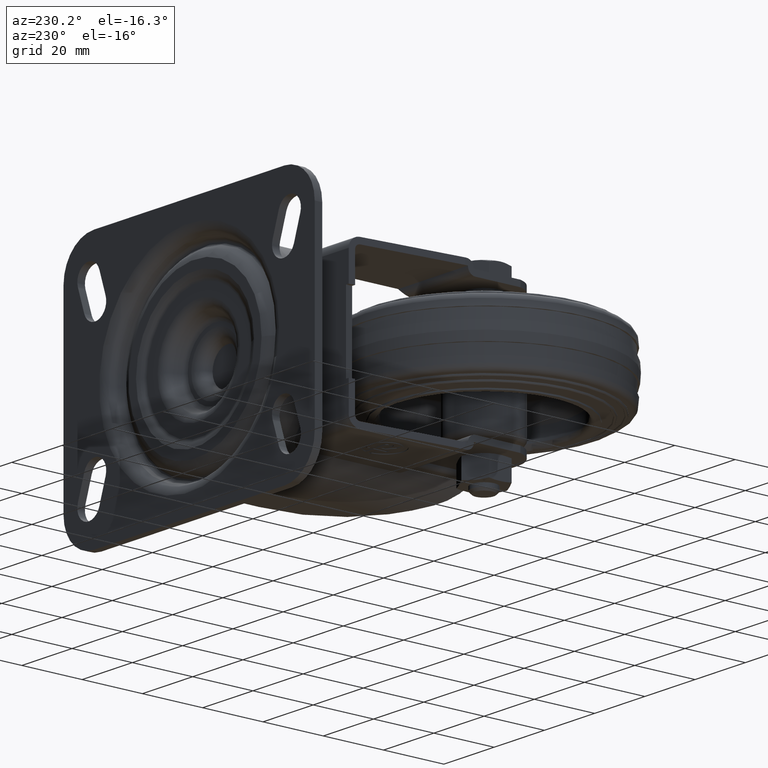
[diagram: clean part render]
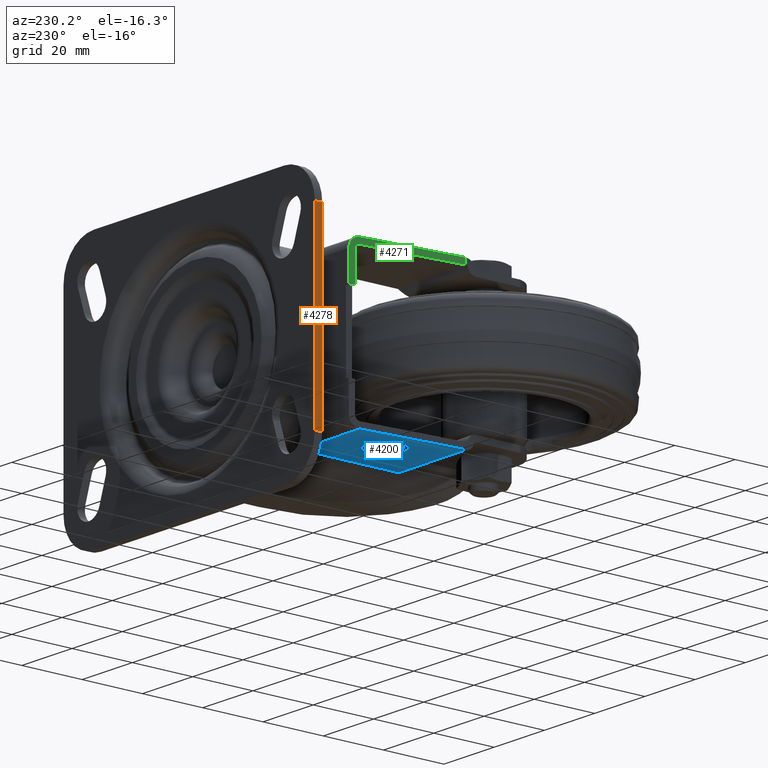
[diagram: same view with three faces highlighted in distinct colors, each labeled with its STEP entity id]
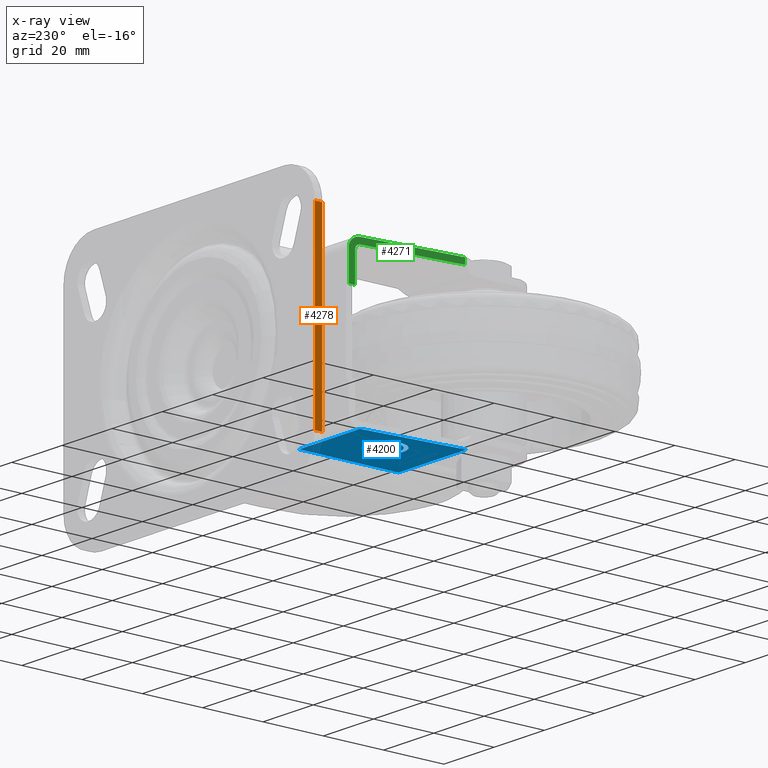
[diagram: x-ray of the same camera — body ghosted, the three highlighted faces saturated]
A machine part, auxiliary view with three faces highlighted in distinct colors.
The next image is the same camera in x-ray (body ghosted, the three faces saturated) — at least one of them is partly hidden behind the body in this view.
Their STEP definitions:

[orange] entity #4278 — the highlighted planar face has unit normal (-1, 0, 0).
#688=FACE_OUTER_BOUND('',#1034,.T.);
#1034=EDGE_LOOP('',(#3535,#3536,#3537,#3538));
#1426=LINE('',#7164,#1756);
#1427=LINE('',#7167,#1757);
#1428=LINE('',#7169,#1758);
#1429=LINE('',#7170,#1759);
#1756=VECTOR('',#5695,2.5);
#1757=VECTOR('',#5698,61.);
#1758=VECTOR('',#5699,61.);
#1759=VECTOR('',#5700,2.5);
#2121=VERTEX_POINT('',#7158);
#2123=VERTEX_POINT('',#7162);
#2124=VERTEX_POINT('',#7166);
#2125=VERTEX_POINT('',#7168);
#2635=EDGE_CURVE('',#2123,#2121,#1426,.T.);
#2636=EDGE_CURVE('',#2121,#2124,#1427,.T.);
#2637=EDGE_CURVE('',#2123,#2125,#1428,.T.);
#2638=EDGE_CURVE('',#2125,#2124,#1429,.T.);
#3535=ORIENTED_EDGE('',*,*,#2636,.F.);
#3536=ORIENTED_EDGE('',*,*,#2635,.F.);
#3537=ORIENTED_EDGE('',*,*,#2637,.T.);
#3538=ORIENTED_EDGE('',*,*,#2638,.T.);
#4058=PLANE('',#4677);
#4278=ADVANCED_FACE('',(#688),#4058,.T.);
#4677=AXIS2_PLACEMENT_3D('',#7165,#5696,#5697);
#5695=DIRECTION('',(0.,1.,0.));
#5696=DIRECTION('center_axis',(-1.,0.,0.));
#5697=DIRECTION('ref_axis',(0.,0.,1.));
#5698=DIRECTION('',(0.,0.,1.));
#5699=DIRECTION('',(0.,0.,1.));
#5700=DIRECTION('',(0.,1.,0.));
#7158=CARTESIAN_POINT('',(-13.,67.,-30.5));
#7162=CARTESIAN_POINT('',(-13.,64.5,-30.5));
#7164=CARTESIAN_POINT('',(-13.,64.5,-30.5));
#7165=CARTESIAN_POINT('Origin',(-13.,64.5,-30.5));
#7166=CARTESIAN_POINT('',(-13.,67.,30.5));
#7167=CARTESIAN_POINT('',(-13.,67.,-30.5));
#7168=CARTESIAN_POINT('',(-13.,64.5,30.5));
#7169=CARTESIAN_POINT('',(-13.,64.5,-30.5));
#7170=CARTESIAN_POINT('',(-13.,64.5,30.5));

[blue] entity #4200 — the highlighted planar face has unit normal (0, 0, -1).
#283=FACE_BOUND('',#950,.T.);
#409=CIRCLE('',#4561,5.99999999999326);
#410=CIRCLE('',#4562,4.79999999999727);
#411=CIRCLE('',#4563,1.79999999999933);
#412=CIRCLE('',#4564,0.599999999999786);
#610=FACE_OUTER_BOUND('',#949,.T.);
#949=EDGE_LOOP('',(#3131,#3132,#3133,#3134,#3135));
#950=EDGE_LOOP('',(#3136,#3137,#3138,#3139,#3140,#3141,#3142,#3143,#3144,
#3145,#3146,#3147,#3148,#3149,#3150,#3151,#3152,#3153,#3154,#3155,#3156,
#3157,#3158,#3159));
#1247=LINE('',#6592,#1577);
#1250=LINE('',#6643,#1580);
#1251=LINE('',#6645,#1581);
#1252=LINE('',#6646,#1582);
#1253=LINE('',#6647,#1583);
#1254=LINE('',#6650,#1584);
#1255=LINE('',#6652,#1585);
#1256=LINE('',#6656,#1586);
#1257=LINE('',#6658,#1587);
#1258=LINE('',#6660,#1588);
#1259=LINE('',#6662,#1589);
#1260=LINE('',#6666,#1590);
#1261=LINE('',#6668,#1591);
#1262=LINE('',#6670,#1592);
#1263=LINE('',#6672,#1593);
#1264=LINE('',#6674,#1594);
#1265=LINE('',#6678,#1595);
#1266=LINE('',#6680,#1596);
#1267=LINE('',#6682,#1597);
#1268=LINE('',#6684,#1598);
#1269=LINE('',#6686,#1599);
#1270=LINE('',#6688,#1600);
#1271=LINE('',#6692,#1601);
#1272=LINE('',#6694,#1602);
#1273=LINE('',#6695,#1603);
#1577=VECTOR('',#5256,27.0536399343466);
#1580=VECTOR('',#5287,32.6392798236095);
#1581=VECTOR('',#5288,24.2089392585713);
#1582=VECTOR('',#5289,32.93);
#1583=VECTOR('',#5290,0.414922490187299);
#1584=VECTOR('',#5291,4.3199999999984);
#1585=VECTOR('',#5292,3.11999999999401);
#1586=VECTOR('',#5295,0.834846212333381);
#1587=VECTOR('',#5296,2.03646752983728);
#1588=VECTOR('',#5297,2.03646752983734);
#1589=VECTOR('',#5298,0.842038973398188);
#1590=VECTOR('',#5301,1.19999999999844);
#1591=VECTOR('',#5302,0.719999999999699);
#1592=VECTOR('',#5303,1.19999999999947);
#1593=VECTOR('',#5304,0.719999999999699);
#1594=VECTOR('',#5305,3.35999999999893);
#1595=VECTOR('',#5308,1.13030475158405);
#1596=VECTOR('',#5309,3.34808382603414);
#1597=VECTOR('',#5310,2.09255239127923);
#1598=VECTOR('',#5311,2.92957334777494);
#1599=VECTOR('',#5312,1.4399999999995);
#1600=VECTOR('',#5313,2.87999999999907);
#1601=VECTOR('',#5316,3.35999999999868);
#1602=VECTOR('',#5317,4.3199999999983);
#1603=VECTOR('',#5318,1.19999999999954);
#1964=VERTEX_POINT('',#6589);
#1965=VERTEX_POINT('',#6591);
#1976=VERTEX_POINT('',#6641);
#1977=VERTEX_POINT('',#6642);
#1978=VERTEX_POINT('',#6644);
#1979=VERTEX_POINT('',#6648);
#1980=VERTEX_POINT('',#6649);
#1981=VERTEX_POINT('',#6651);
#1982=VERTEX_POINT('',#6653);
#1983=VERTEX_POINT('',#6655);
#1984=VERTEX_POINT('',#6657);
#1985=VERTEX_POINT('',#6659);
#1986=VERTEX_POINT('',#6661);
#1987=VERTEX_POINT('',#6663);
#1988=VERTEX_POINT('',#6665);
#1989=VERTEX_POINT('',#6667);
#1990=VERTEX_POINT('',#6669);
#1991=VERTEX_POINT('',#6671);
#1992=VERTEX_POINT('',#6673);
#1993=VERTEX_POINT('',#6675);
#1994=VERTEX_POINT('',#6677);
#1995=VERTEX_POINT('',#6679);
#1996=VERTEX_POINT('',#6681);
#1997=VERTEX_POINT('',#6683);
#1998=VERTEX_POINT('',#6685);
#1999=VERTEX_POINT('',#6687);
#2000=VERTEX_POINT('',#6689);
#2001=VERTEX_POINT('',#6691);
#2002=VERTEX_POINT('',#6693);
#2402=EDGE_CURVE('',#1964,#1965,#1247,.T.);
#2414=EDGE_CURVE('',#1976,#1977,#1250,.T.);
#2415=EDGE_CURVE('',#1976,#1978,#1251,.T.);
#2416=EDGE_CURVE('',#1965,#1978,#1252,.T.);
#2417=EDGE_CURVE('',#1964,#1977,#1253,.T.);
#2418=EDGE_CURVE('',#1979,#1980,#1254,.T.);
#2419=EDGE_CURVE('',#1980,#1981,#1255,.T.);
#2420=EDGE_CURVE('',#1981,#1982,#409,.T.);
#2421=EDGE_CURVE('',#1982,#1983,#1256,.T.);
#2422=EDGE_CURVE('',#1983,#1984,#1257,.T.);
#2423=EDGE_CURVE('',#1984,#1985,#1258,.T.);
#2424=EDGE_CURVE('',#1985,#1986,#1259,.T.);
#2425=EDGE_CURVE('',#1987,#1986,#410,.T.);
#2426=EDGE_CURVE('',#1987,#1988,#1260,.T.);
#2427=EDGE_CURVE('',#1988,#1989,#1261,.T.);
#2428=EDGE_CURVE('',#1989,#1990,#1262,.T.);
#2429=EDGE_CURVE('',#1990,#1991,#1263,.T.);
#2430=EDGE_CURVE('',#1991,#1992,#1264,.T.);
#2431=EDGE_CURVE('',#1992,#1993,#411,.T.);
#2432=EDGE_CURVE('',#1993,#1994,#1265,.T.);
#2433=EDGE_CURVE('',#1994,#1995,#1266,.T.);
#2434=EDGE_CURVE('',#1995,#1996,#1267,.T.);
#2435=EDGE_CURVE('',#1996,#1997,#1268,.T.);
#2436=EDGE_CURVE('',#1997,#1998,#1269,.T.);
#2437=EDGE_CURVE('',#1998,#1999,#1270,.T.);
#2438=EDGE_CURVE('',#2000,#1999,#412,.T.);
#2439=EDGE_CURVE('',#2000,#2001,#1271,.T.);
#2440=EDGE_CURVE('',#2001,#2002,#1272,.T.);
#2441=EDGE_CURVE('',#2002,#1979,#1273,.T.);
#3131=ORIENTED_EDGE('',*,*,#2414,.F.);
#3132=ORIENTED_EDGE('',*,*,#2415,.T.);
#3133=ORIENTED_EDGE('',*,*,#2416,.F.);
#3134=ORIENTED_EDGE('',*,*,#2402,.F.);
#3135=ORIENTED_EDGE('',*,*,#2417,.T.);
#3136=ORIENTED_EDGE('',*,*,#2418,.T.);
#3137=ORIENTED_EDGE('',*,*,#2419,.T.);
#3138=ORIENTED_EDGE('',*,*,#2420,.T.);
#3139=ORIENTED_EDGE('',*,*,#2421,.T.);
#3140=ORIENTED_EDGE('',*,*,#2422,.T.);
#3141=ORIENTED_EDGE('',*,*,#2423,.T.);
#3142=ORIENTED_EDGE('',*,*,#2424,.T.);
#3143=ORIENTED_EDGE('',*,*,#2425,.F.);
#3144=ORIENTED_EDGE('',*,*,#2426,.T.);
#3145=ORIENTED_EDGE('',*,*,#2427,.T.);
#3146=ORIENTED_EDGE('',*,*,#2428,.T.);
#3147=ORIENTED_EDGE('',*,*,#2429,.T.);
#3148=ORIENTED_EDGE('',*,*,#2430,.T.);
#3149=ORIENTED_EDGE('',*,*,#2431,.T.);
#3150=ORIENTED_EDGE('',*,*,#2432,.T.);
#3151=ORIENTED_EDGE('',*,*,#2433,.T.);
#3152=ORIENTED_EDGE('',*,*,#2434,.T.);
#3153=ORIENTED_EDGE('',*,*,#2435,.T.);
#3154=ORIENTED_EDGE('',*,*,#2436,.T.);
#3155=ORIENTED_EDGE('',*,*,#2437,.T.);
#3156=ORIENTED_EDGE('',*,*,#2438,.F.);
#3157=ORIENTED_EDGE('',*,*,#2439,.T.);
#3158=ORIENTED_EDGE('',*,*,#2440,.T.);
#3159=ORIENTED_EDGE('',*,*,#2441,.T.);
#3999=PLANE('',#4560);
#4200=ADVANCED_FACE('',(#610,#283),#3999,.T.);
#4560=AXIS2_PLACEMENT_3D('',#6640,#5285,#5286);
#4561=AXIS2_PLACEMENT_3D('',#6654,#5293,#5294);
#4562=AXIS2_PLACEMENT_3D('',#6664,#5299,#5300);
#4563=AXIS2_PLACEMENT_3D('',#6676,#5306,#5307);
#4564=AXIS2_PLACEMENT_3D('',#6690,#5314,#5315);
#5256=DIRECTION('',(1.,0.,0.));
#5285=DIRECTION('center_axis',(0.,0.,-1.));
#5286=DIRECTION('ref_axis',(-1.,0.,0.));
#5287=DIRECTION('',(-0.0871557427476581,-0.996194698091746,0.));
#5288=DIRECTION('',(1.,0.,0.));
#5289=DIRECTION('',(0.,1.,0.));
#5290=DIRECTION('',(0.,1.,0.));
#5291=DIRECTION('',(-2.22261445359609E-13,1.,0.));
#5292=DIRECTION('',(1.,2.46864494658712E-13,0.));
#5293=DIRECTION('center_axis',(0.,0.,1.));
#5294=DIRECTION('ref_axis',(1.,0.,0.));
#5295=DIRECTION('',(0.99984769515611,-0.0174524064534138,0.));
#5296=DIRECTION('',(-0.694658370462154,0.719339800335603,0.));
#5297=DIRECTION('',(-0.71933980033565,-0.694658370462105,0.));
#5298=DIRECTION('',(0.999847695157054,-0.0174524063993045,0.));
#5299=DIRECTION('center_axis',(0.,0.,1.));
#5300=DIRECTION('ref_axis',(1.,0.,0.));
#5301=DIRECTION('',(-1.,-1.67689936011309E-13,0.));
#5302=DIRECTION('',(-1.94554056507195E-13,1.,0.));
#5303=DIRECTION('',(-1.,-2.94902990916188E-13,0.));
#5304=DIRECTION('',(1.8853071110451E-13,-1.,0.));
#5305=DIRECTION('',(-1.,-2.43687345434915E-13,0.));
#5306=DIRECTION('center_axis',(0.,0.,1.));
#5307=DIRECTION('ref_axis',(1.,0.,0.));
#5308=DIRECTION('',(1.,1.78029795001176E-13,0.));
#5309=DIRECTION('',(-0.8192319205196,-0.573462344362529,0.));
#5310=DIRECTION('',(1.,2.37093664271923E-13,0.));
#5311=DIRECTION('',(0.819231920518928,0.573462344363489,0.));
#5312=DIRECTION('',(-1.89434212914894E-13,1.,0.));
#5313=DIRECTION('',(-1.,-2.07203081852852E-13,0.));
#5314=DIRECTION('center_axis',(0.,0.,1.));
#5315=DIRECTION('ref_axis',(1.,0.,0.));
#5316=DIRECTION('',(1.,2.0444955252591E-13,0.));
#5317=DIRECTION('',(2.36817863416141E-13,-1.,0.));
#5318=DIRECTION('',(1.,1.6479873021786E-13,0.));
#6589=CARTESIAN_POINT('',(-11.,15.,-25.5));
#6591=CARTESIAN_POINT('',(16.0536399343466,15.,-25.5));
#6592=CARTESIAN_POINT('',(-11.,15.,-25.5));
#6640=CARTESIAN_POINT('Origin',(-11.,15.,-25.5));
#6641=CARTESIAN_POINT('',(-8.15529932422467,47.93,-25.5));
#6642=CARTESIAN_POINT('',(-11.,15.4149224901873,-25.5));
#6643=CARTESIAN_POINT('',(-11.036025267147,15.0031518024759,-25.5));
#6644=CARTESIAN_POINT('',(16.0536399343466,47.93,-25.5));
#6645=CARTESIAN_POINT('',(-11.,47.93,-25.5));
#6646=CARTESIAN_POINT('',(16.0536399343466,69.,-25.5));
#6647=CARTESIAN_POINT('',(-11.,15.,-25.5));
#6648=CARTESIAN_POINT('',(3.64000000228326,29.3518077191249,-25.5));
#6649=CARTESIAN_POINT('',(3.6400000022823,33.6718077191233,-25.5));
#6650=CARTESIAN_POINT('',(3.64000000228326,29.3518077191249,-25.5));
#6651=CARTESIAN_POINT('',(6.76000000227631,33.6718077191241,-25.5));
#6652=CARTESIAN_POINT('',(3.6400000022823,33.6718077191233,-25.5));
#6653=CARTESIAN_POINT('',(6.97993015684598,31.5014656482448,-25.5));
#6654=CARTESIAN_POINT('Origin',(1.00000000228351,31.9918077191235,-25.5));
#6655=CARTESIAN_POINT('',(7.81464921805732,31.4868955728211,-25.5));
#6656=CARTESIAN_POINT('',(6.97993015684598,31.5014656482448,-25.5));
#6657=CARTESIAN_POINT('',(6.40000000228147,32.9518077191242,-25.5));
#6658=CARTESIAN_POINT('',(7.81464921805732,31.4868955728211,-25.5));
#6659=CARTESIAN_POINT('',(4.93508785597824,31.5371585033484,-25.5));
#6660=CARTESIAN_POINT('',(6.40000000228147,32.9518077191242,-25.5));
#6661=CARTESIAN_POINT('',(5.77699858276283,31.5224628969806,-25.5));
#6662=CARTESIAN_POINT('',(4.93508785597824,31.5371585033484,-25.5));
#6663=CARTESIAN_POINT('',(4.8400000022804,34.8718077191231,-25.5));
#6664=CARTESIAN_POINT('Origin',(1.00000000228351,31.9918077191235,-25.5));
#6665=CARTESIAN_POINT('',(3.64000000228196,34.8718077191229,-25.5));
#6666=CARTESIAN_POINT('',(4.8400000022804,34.8718077191231,-25.5));
#6667=CARTESIAN_POINT('',(3.64000000228182,35.5918077191226,-25.5));
#6668=CARTESIAN_POINT('',(3.64000000228196,34.8718077191229,-25.5));
#6669=CARTESIAN_POINT('',(2.44000000228235,35.5918077191223,-25.5));
#6670=CARTESIAN_POINT('',(3.64000000228182,35.5918077191226,-25.5));
#6671=CARTESIAN_POINT('',(2.44000000228249,34.8718077191226,-25.5));
#6672=CARTESIAN_POINT('',(2.44000000228235,35.5918077191223,-25.5));
#6673=CARTESIAN_POINT('',(-0.919999997716437,34.8718077191218,-25.5));
#6674=CARTESIAN_POINT('',(2.44000000228249,34.8718077191226,-25.5));
#6675=CARTESIAN_POINT('',(-0.919999997715993,31.2718077191232,-25.5));
#6676=CARTESIAN_POINT('Origin',(-0.919999997716009,33.0718077191225,-25.5));
#6677=CARTESIAN_POINT('',(0.21030475386806,31.2718077191234,-25.5));
#6678=CARTESIAN_POINT('',(-0.919999997715689,31.2718077191232,-25.5));
#6679=CARTESIAN_POINT('',(-2.5325523889945,29.3518077191236,-25.5));
#6680=CARTESIAN_POINT('',(0.21030475386806,31.2718077191234,-25.5));
#6681=CARTESIAN_POINT('',(-0.43999999771527,29.3518077191241,-25.5));
#6682=CARTESIAN_POINT('',(-2.5325523889945,29.3518077191236,-25.5));
#6683=CARTESIAN_POINT('',(1.96000000228347,31.0318077191239,-25.5));
#6684=CARTESIAN_POINT('',(-0.43999999771527,29.3518077191241,-25.5));
#6685=CARTESIAN_POINT('',(1.96000000228319,32.4718077191234,-25.5));
#6686=CARTESIAN_POINT('',(1.96000000228347,31.0318077191239,-25.5));
#6687=CARTESIAN_POINT('',(-0.919999997715875,32.4718077191228,-25.5));
#6688=CARTESIAN_POINT('',(1.96000000228319,32.4718077191234,-25.5));
#6689=CARTESIAN_POINT('',(-0.919999997715995,33.6718077191223,-25.5));
#6690=CARTESIAN_POINT('Origin',(-0.919999997715995,33.0718077191225,-25.5));
#6691=CARTESIAN_POINT('',(2.44000000228269,33.671807719123,-25.5));
#6692=CARTESIAN_POINT('',(-0.919999997716123,33.6718077191223,-25.5));
#6693=CARTESIAN_POINT('',(2.44000000228372,29.3518077191247,-25.5));
#6694=CARTESIAN_POINT('',(2.4400000022827,33.671807719123,-25.5));
#6695=CARTESIAN_POINT('',(2.44000000228372,29.3518077191247,-25.5));

[green] entity #4271 — the highlighted planar face has unit normal (0.9962, -0.0872, 0).
#49=ELLIPSE('',#4540,1.50572975631501,1.49999999999999);
#50=ELLIPSE('',#4548,3.51336943140172,3.5);
#681=FACE_OUTER_BOUND('',#1027,.T.);
#1027=EDGE_LOOP('',(#3499,#3500,#3501,#3502,#3503,#3504,#3505,#3506));
#1239=LINE('',#6549,#1569);
#1363=LINE('',#6901,#1693);
#1369=LINE('',#6918,#1699);
#1412=LINE('',#7070,#1742);
#1416=LINE('',#7082,#1746);
#1417=LINE('',#7083,#1747);
#1569=VECTOR('',#5238,32.6392798236095);
#1693=VECTOR('',#5504,2.0076396750867);
#1699=VECTOR('',#5524,9.5);
#1742=VECTOR('',#5649,9.5);
#1746=VECTOR('',#5663,2.);
#1747=VECTOR('',#5664,32.6392798236095);
#1953=VERTEX_POINT('',#6542);
#1954=VERTEX_POINT('',#6544);
#1955=VERTEX_POINT('',#6548);
#1966=VERTEX_POINT('',#6604);
#1967=VERTEX_POINT('',#6605);
#2067=VERTEX_POINT('',#6894);
#2070=VERTEX_POINT('',#6899);
#2113=VERTEX_POINT('',#7081);
#2389=EDGE_CURVE('',#1953,#1954,#49,.T.);
#2390=EDGE_CURVE('',#1954,#1955,#1239,.T.);
#2404=EDGE_CURVE('',#1966,#1967,#50,.F.);
#2543=EDGE_CURVE('',#2067,#2070,#1363,.T.);
#2551=EDGE_CURVE('',#2070,#1953,#1369,.T.);
#2611=EDGE_CURVE('',#1967,#2067,#1412,.T.);
#2617=EDGE_CURVE('',#2113,#1955,#1416,.T.);
#2618=EDGE_CURVE('',#2113,#1966,#1417,.T.);
#3499=ORIENTED_EDGE('',*,*,#2611,.T.);
#3500=ORIENTED_EDGE('',*,*,#2543,.T.);
#3501=ORIENTED_EDGE('',*,*,#2551,.T.);
#3502=ORIENTED_EDGE('',*,*,#2389,.T.);
#3503=ORIENTED_EDGE('',*,*,#2390,.T.);
#3504=ORIENTED_EDGE('',*,*,#2617,.F.);
#3505=ORIENTED_EDGE('',*,*,#2618,.T.);
#3506=ORIENTED_EDGE('',*,*,#2404,.T.);
#4055=PLANE('',#4665);
#4271=ADVANCED_FACE('',(#681),#4055,.F.);
#4540=AXIS2_PLACEMENT_3D('',#6546,#5234,#5235);
#4548=AXIS2_PLACEMENT_3D('',#6606,#5259,#5260);
#4665=AXIS2_PLACEMENT_3D('',#7080,#5661,#5662);
#5234=DIRECTION('center_axis',(0.996194698091746,-0.0871557427476581,0.));
#5235=DIRECTION('ref_axis',(0.0871557427476581,0.996194698091746,0.));
#5238=DIRECTION('',(-0.0871557427476581,-0.996194698091746,0.));
#5259=DIRECTION('center_axis',(0.996194698091746,-0.0871557427476581,0.));
#5260=DIRECTION('ref_axis',(0.087155742747658,0.996194698091746,0.));
#5504=DIRECTION('',(-0.0871557427476581,-0.996194698091746,0.));
#5524=DIRECTION('',(0.,0.,1.));
#5649=DIRECTION('',(0.,0.,-1.));
#5661=DIRECTION('center_axis',(0.996194698091746,-0.0871557427476581,0.));
#5662=DIRECTION('ref_axis',(0.0871557427476578,0.996194698091746,0.));
#5663=DIRECTION('',(0.,0.,-1.));
#5664=DIRECTION('',(0.0871557427476581,0.996194698091746,0.));
#6542=CARTESIAN_POINT('',(-8.02406632893578,49.43,22.));
#6544=CARTESIAN_POINT('',(-8.15529932422467,47.93,23.5));
#6546=CARTESIAN_POINT('Origin',(-8.15529932422467,47.93,22.));
#6548=CARTESIAN_POINT('',(-11.,15.4149224901873,23.5));
#6549=CARTESIAN_POINT('',(-7.53675447309638,55.,23.5));
#6604=CARTESIAN_POINT('',(-8.15529932422467,47.93,25.5));
#6605=CARTESIAN_POINT('',(-7.84908900188393,51.43,22.));
#6606=CARTESIAN_POINT('Origin',(-8.15529932422467,47.93,22.));
#6894=CARTESIAN_POINT('',(-7.84908900188393,51.43,12.5));
#6899=CARTESIAN_POINT('',(-8.02406632893578,49.43,12.5));
#6901=CARTESIAN_POINT('',(-7.53675447309638,55.,12.5));
#6918=CARTESIAN_POINT('',(-8.02406632893578,49.43,50.));
#7070=CARTESIAN_POINT('',(-7.84908900188393,51.43,-22.));
#7080=CARTESIAN_POINT('Origin',(-7.53675447309638,55.,50.));
#7081=CARTESIAN_POINT('',(-11.,15.4149224901873,25.5));
#7082=CARTESIAN_POINT('',(-11.,15.4149224901873,22.));
#7083=CARTESIAN_POINT('',(-8.17690802186103,47.6830114558219,25.5));